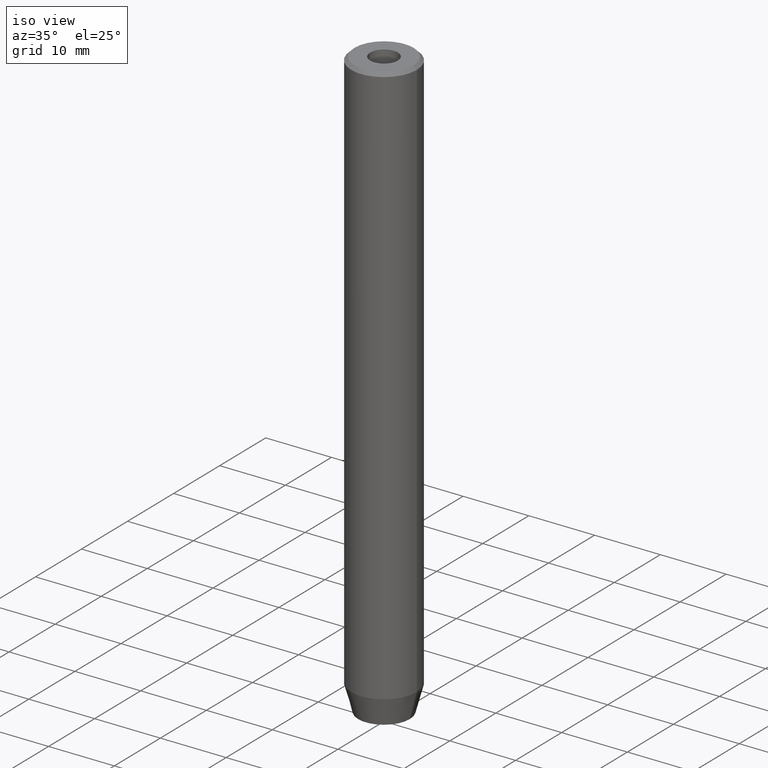
[diagram: clean part render]
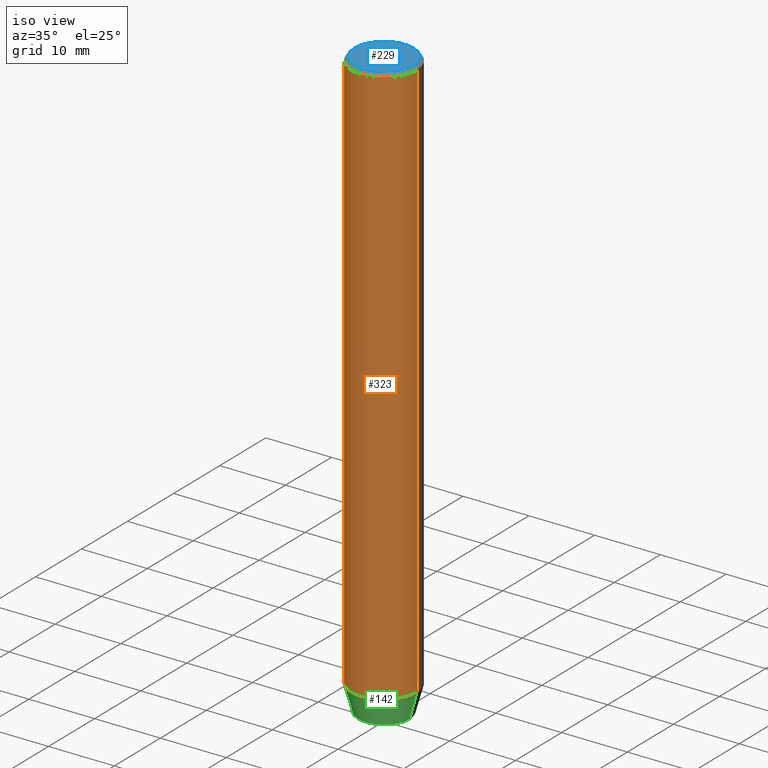
[diagram: same view with three faces highlighted in distinct colors, each labeled with its STEP entity id]
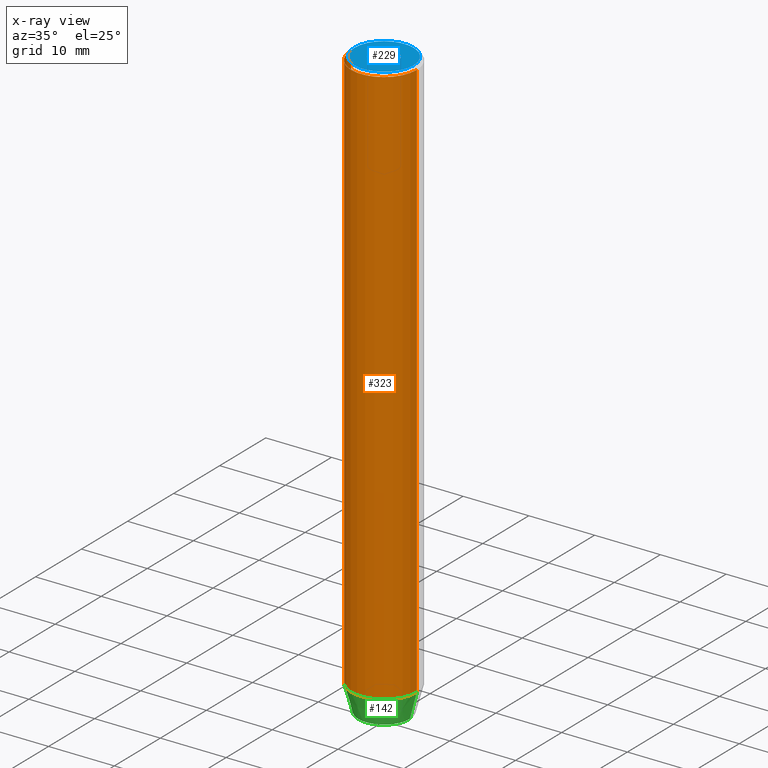
[diagram: x-ray of the same camera — body ghosted, the three highlighted faces saturated]
A machine part, iso view with three faces highlighted in distinct colors.
The next image is the same camera in x-ray (body ghosted, the three faces saturated) — at least one of them is partly hidden behind the body in this view.
Their STEP definitions:

[orange] entity #323 — the highlighted cylindrical surface (partial cylindrical patch) has radius 5 mm, axis along (-0, -0, 1).
#14 = AXIS2_PLACEMENT_3D ( 'NONE', #88, #166, #123 ) ;
#30 = EDGE_CURVE ( 'NONE', #64, #194, #185, .T. ) ;
#64 = VERTEX_POINT ( 'NONE', #134 ) ;
#88 = CARTESIAN_POINT ( 'NONE',  ( 0.000000000000000000, 0.000000000000000000, 0.000000000000000000 ) ) ;
#94 = DIRECTION ( 'NONE',  ( 1.000000000000000000, 0.000000000000000000, 0.000000000000000000 ) ) ;
#99 = CARTESIAN_POINT ( 'NONE',  ( -5.000000000000000000, 6.123233995736766282E-16, -0.4999999999999857891 ) ) ;
#109 = ORIENTED_EDGE ( 'NONE', *, *, #164, .T. ) ;
#123 = DIRECTION ( 'NONE',  ( 1.000000000000000000, 0.000000000000000000, 0.000000000000000000 ) ) ;
#134 = CARTESIAN_POINT ( 'NONE',  ( 5.000000000000000000, 0.000000000000000000, -0.4999999999999857891 ) ) ;
#140 = VERTEX_POINT ( 'NONE', #317 ) ;
#149 = CIRCLE ( 'NONE', #546, 5.000000000000000000 ) ;
#163 = EDGE_CURVE ( 'NONE', #167, #194, #240, .T. ) ;
#164 = EDGE_CURVE ( 'NONE', #140, #64, #555, .T. ) ;
#166 = DIRECTION ( 'NONE',  ( -0.000000000000000000, -0.000000000000000000, 1.000000000000000000 ) ) ;
#167 = VERTEX_POINT ( 'NONE', #416 ) ;
#169 = CYLINDRICAL_SURFACE ( 'NONE', #14, 5.000000000000000000 ) ;
#185 = CIRCLE ( 'NONE', #568, 5.000000000000000000 ) ;
#192 = CARTESIAN_POINT ( 'NONE',  ( -5.000000000000000000, 6.123233995736766282E-16, 0.000000000000000000 ) ) ;
#194 = VERTEX_POINT ( 'NONE', #99 ) ;
#199 = ORIENTED_EDGE ( 'NONE', *, *, #163, .F. ) ;
#221 = DIRECTION ( 'NONE',  ( 1.000000000000000000, 0.000000000000000000, 0.000000000000000000 ) ) ;
#238 = VECTOR ( 'NONE', #459, 1000.000000000000000 ) ;
#240 = LINE ( 'NONE', #192, #387 ) ;
#317 = CARTESIAN_POINT ( 'NONE',  ( 5.000000000000000000, 0.000000000000000000, -86.00000000000000000 ) ) ;
#322 = CARTESIAN_POINT ( 'NONE',  ( 5.000000000000000000, 0.000000000000000000, 0.000000000000000000 ) ) ;
#323 = ADVANCED_FACE ( 'NONE', ( #406 ), #169, .T. ) ;
#378 = DIRECTION ( 'NONE',  ( -0.000000000000000000, -0.000000000000000000, 1.000000000000000000 ) ) ;
#387 = VECTOR ( 'NONE', #378, 1000.000000000000000 ) ;
#406 = FACE_OUTER_BOUND ( 'NONE', #560, .T. ) ;
#416 = CARTESIAN_POINT ( 'NONE',  ( -5.000000000000000000, 6.123233995736766282E-16, -86.00000000000000000 ) ) ;
#437 = CARTESIAN_POINT ( 'NONE',  ( 0.000000000000000000, 0.000000000000000000, -86.00000000000000000 ) ) ;
#447 = ORIENTED_EDGE ( 'NONE', *, *, #558, .T. ) ;
#449 = DIRECTION ( 'NONE',  ( 0.000000000000000000, 0.000000000000000000, -1.000000000000000000 ) ) ;
#459 = DIRECTION ( 'NONE',  ( -0.000000000000000000, -0.000000000000000000, 1.000000000000000000 ) ) ;
#501 = ORIENTED_EDGE ( 'NONE', *, *, #30, .T. ) ;
#541 = CARTESIAN_POINT ( 'NONE',  ( 0.000000000000000000, 0.000000000000000000, -0.4999999999999857891 ) ) ;
#546 = AXIS2_PLACEMENT_3D ( 'NONE', #437, #576, #221 ) ;
#555 = LINE ( 'NONE', #322, #238 ) ;
#558 = EDGE_CURVE ( 'NONE', #167, #140, #149, .T. ) ;
#560 = EDGE_LOOP ( 'NONE', ( #199, #447, #109, #501 ) ) ;
#568 = AXIS2_PLACEMENT_3D ( 'NONE', #541, #449, #94 ) ;
#576 = DIRECTION ( 'NONE',  ( -0.000000000000000000, -0.000000000000000000, 1.000000000000000000 ) ) ;

[blue] entity #229 — the highlighted planar face has unit normal (0, -0, 1).
#15 = AXIS2_PLACEMENT_3D ( 'NONE', #234, #412, #143 ) ;
#17 = DIRECTION ( 'NONE',  ( 1.000000000000000000, 0.000000000000000000, 0.000000000000000000 ) ) ;
#21 = ORIENTED_EDGE ( 'NONE', *, *, #287, .T. ) ;
#46 = AXIS2_PLACEMENT_3D ( 'NONE', #222, #176, #451 ) ;
#52 = PLANE ( 'NONE',  #15 ) ;
#58 = DIRECTION ( 'NONE',  ( -0.000000000000000000, -0.000000000000000000, 1.000000000000000000 ) ) ;
#62 = CARTESIAN_POINT ( 'NONE',  ( 0.000000000000000000, 0.000000000000000000, -1.990051048614449116E-16 ) ) ;
#91 = DIRECTION ( 'NONE',  ( -0.000000000000000000, -0.000000000000000000, 1.000000000000000000 ) ) ;
#93 = AXIS2_PLACEMENT_3D ( 'NONE', #402, #301, #219 ) ;
#97 = EDGE_CURVE ( 'NONE', #264, #464, #414, .T. ) ;
#129 = CARTESIAN_POINT ( 'NONE',  ( -2.099999999999998757, 2.571758278209439985E-16, -1.990051048614449116E-16 ) ) ;
#143 = DIRECTION ( 'NONE',  ( 1.000000000000000000, 0.000000000000000000, 0.000000000000000000 ) ) ;
#144 = ORIENTED_EDGE ( 'NONE', *, *, #326, .F. ) ;
#162 = ORIENTED_EDGE ( 'NONE', *, *, #253, .F. ) ;
#176 = DIRECTION ( 'NONE',  ( -0.000000000000000000, -0.000000000000000000, 1.000000000000000000 ) ) ;
#207 = EDGE_LOOP ( 'NONE', ( #144, #162 ) ) ;
#219 = DIRECTION ( 'NONE',  ( 1.000000000000000000, 0.000000000000000000, 0.000000000000000000 ) ) ;
#222 = CARTESIAN_POINT ( 'NONE',  ( 0.000000000000000000, 0.000000000000000000, 0.000000000000000000 ) ) ;
#223 = CARTESIAN_POINT ( 'NONE',  ( 0.000000000000000000, 0.000000000000000000, 0.000000000000000000 ) ) ;
#229 = ADVANCED_FACE ( 'NONE', ( #231, #409 ), #52, .T. ) ;
#231 = FACE_BOUND ( 'NONE', #207, .T. ) ;
#234 = CARTESIAN_POINT ( 'NONE',  ( 0.000000000000000000, 0.000000000000000000, 0.000000000000000000 ) ) ;
#253 = EDGE_CURVE ( 'NONE', #394, #421, #582, .T. ) ;
#264 = VERTEX_POINT ( 'NONE', #532 ) ;
#287 = EDGE_CURVE ( 'NONE', #464, #264, #315, .T. ) ;
#295 = EDGE_LOOP ( 'NONE', ( #525, #21 ) ) ;
#301 = DIRECTION ( 'NONE',  ( -0.000000000000000000, -0.000000000000000000, 1.000000000000000000 ) ) ;
#315 = CIRCLE ( 'NONE', #46, 4.500000000000017764 ) ;
#326 = EDGE_CURVE ( 'NONE', #421, #394, #562, .T. ) ;
#394 = VERTEX_POINT ( 'NONE', #129 ) ;
#402 = CARTESIAN_POINT ( 'NONE',  ( 0.000000000000000000, 0.000000000000000000, -1.990051048614449116E-16 ) ) ;
#409 = FACE_OUTER_BOUND ( 'NONE', #295, .T. ) ;
#412 = DIRECTION ( 'NONE',  ( 0.000000000000000000, -0.000000000000000000, 1.000000000000000000 ) ) ;
#414 = CIRCLE ( 'NONE', #543, 4.500000000000017764 ) ;
#421 = VERTEX_POINT ( 'NONE', #426 ) ;
#426 = CARTESIAN_POINT ( 'NONE',  ( 2.099999999999998757, 0.000000000000000000, -1.990051048614449116E-16 ) ) ;
#451 = DIRECTION ( 'NONE',  ( 1.000000000000000000, 0.000000000000000000, 0.000000000000000000 ) ) ;
#464 = VERTEX_POINT ( 'NONE', #475 ) ;
#475 = CARTESIAN_POINT ( 'NONE',  ( 4.500000000000017764, 5.817072295949938273E-16, 0.000000000000000000 ) ) ;
#517 = AXIS2_PLACEMENT_3D ( 'NONE', #62, #58, #17 ) ;
#525 = ORIENTED_EDGE ( 'NONE', *, *, #97, .T. ) ;
#532 = CARTESIAN_POINT ( 'NONE',  ( -4.500000000000017764, 0.000000000000000000, 0.000000000000000000 ) ) ;
#543 = AXIS2_PLACEMENT_3D ( 'NONE', #223, #91, #575 ) ;
#562 = CIRCLE ( 'NONE', #93, 2.099999999999998757 ) ;
#575 = DIRECTION ( 'NONE',  ( 1.000000000000000000, 0.000000000000000000, 0.000000000000000000 ) ) ;
#582 = CIRCLE ( 'NONE', #517, 2.099999999999998757 ) ;

[green] entity #142 — the highlighted conical surface has half-angle 15 deg.
#9 = CARTESIAN_POINT ( 'NONE',  ( 0.000000000000000000, 0.000000000000000000, -86.00000000000000000 ) ) ;
#13 = EDGE_LOOP ( 'NONE', ( #513, #24, #208, #211 ) ) ;
#24 = ORIENTED_EDGE ( 'NONE', *, *, #439, .T. ) ;
#32 = CARTESIAN_POINT ( 'NONE',  ( -5.000000000000000000, 6.123233995736766282E-16, -86.00000000000000000 ) ) ;
#41 = DIRECTION ( 'NONE',  ( -0.2588190451025210725, 3.169619151431769255E-17, 0.9659258262890680902 ) ) ;
#42 = CARTESIAN_POINT ( 'NONE',  ( -3.928203230275506996, 5.466947754046979141E-16, -90.00000000000000000 ) ) ;
#56 = CONICAL_SURFACE ( 'NONE', #469, 5.000000000000000000, 0.2617993877991497964 ) ;
#75 = DIRECTION ( 'NONE',  ( -0.000000000000000000, -0.000000000000000000, 1.000000000000000000 ) ) ;
#101 = LINE ( 'NONE', #283, #260 ) ;
#140 = VERTEX_POINT ( 'NONE', #317 ) ;
#142 = ADVANCED_FACE ( 'NONE', ( #243 ), #56, .T. ) ;
#149 = CIRCLE ( 'NONE', #546, 5.000000000000000000 ) ;
#157 = VERTEX_POINT ( 'NONE', #363 ) ;
#160 = CARTESIAN_POINT ( 'NONE',  ( 0.000000000000000000, 0.000000000000000000, -90.00000000000000000 ) ) ;
#165 = CIRCLE ( 'NONE', #281, 3.928203230275506996 ) ;
#167 = VERTEX_POINT ( 'NONE', #416 ) ;
#203 = DIRECTION ( 'NONE',  ( 1.000000000000000000, 0.000000000000000000, 0.000000000000000000 ) ) ;
#208 = ORIENTED_EDGE ( 'NONE', *, *, #247, .T. ) ;
#211 = ORIENTED_EDGE ( 'NONE', *, *, #558, .F. ) ;
#221 = DIRECTION ( 'NONE',  ( 1.000000000000000000, 0.000000000000000000, 0.000000000000000000 ) ) ;
#243 = FACE_OUTER_BOUND ( 'NONE', #13, .T. ) ;
#247 = EDGE_CURVE ( 'NONE', #157, #140, #101, .T. ) ;
#260 = VECTOR ( 'NONE', #463, 1000.000000000000114 ) ;
#281 = AXIS2_PLACEMENT_3D ( 'NONE', #160, #75, #203 ) ;
#283 = CARTESIAN_POINT ( 'NONE',  ( 5.000000000000000000, 0.000000000000000000, -86.00000000000000000 ) ) ;
#317 = CARTESIAN_POINT ( 'NONE',  ( 5.000000000000000000, 0.000000000000000000, -86.00000000000000000 ) ) ;
#363 = CARTESIAN_POINT ( 'NONE',  ( 3.928203230275506996, 0.000000000000000000, -90.00000000000000000 ) ) ;
#385 = VERTEX_POINT ( 'NONE', #42 ) ;
#416 = CARTESIAN_POINT ( 'NONE',  ( -5.000000000000000000, 6.123233995736766282E-16, -86.00000000000000000 ) ) ;
#420 = DIRECTION ( 'NONE',  ( 1.000000000000000000, 0.000000000000000000, 0.000000000000000000 ) ) ;
#437 = CARTESIAN_POINT ( 'NONE',  ( 0.000000000000000000, 0.000000000000000000, -86.00000000000000000 ) ) ;
#439 = EDGE_CURVE ( 'NONE', #385, #157, #165, .T. ) ;
#456 = DIRECTION ( 'NONE',  ( -0.000000000000000000, -0.000000000000000000, 1.000000000000000000 ) ) ;
#463 = DIRECTION ( 'NONE',  ( 0.2588190451025210725, 0.000000000000000000, 0.9659258262890680902 ) ) ;
#469 = AXIS2_PLACEMENT_3D ( 'NONE', #9, #456, #420 ) ;
#513 = ORIENTED_EDGE ( 'NONE', *, *, #556, .F. ) ;
#546 = AXIS2_PLACEMENT_3D ( 'NONE', #437, #576, #221 ) ;
#556 = EDGE_CURVE ( 'NONE', #385, #167, #579, .T. ) ;
#558 = EDGE_CURVE ( 'NONE', #167, #140, #149, .T. ) ;
#565 = VECTOR ( 'NONE', #41, 1000.000000000000114 ) ;
#576 = DIRECTION ( 'NONE',  ( -0.000000000000000000, -0.000000000000000000, 1.000000000000000000 ) ) ;
#579 = LINE ( 'NONE', #32, #565 ) ;